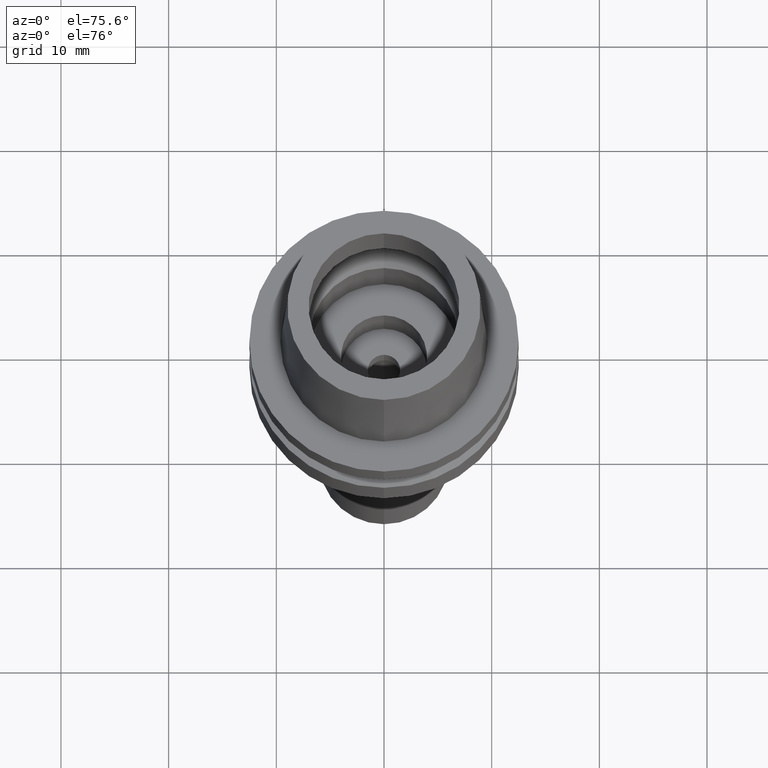
[diagram: clean part render]
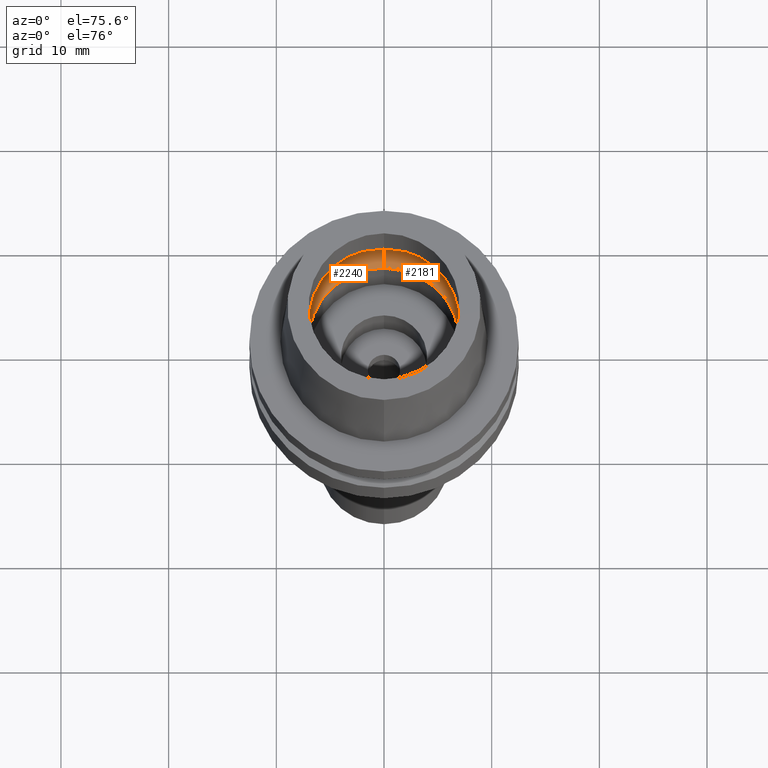
[diagram: same view with one multi-face feature highlighted, each face labeled with its STEP entity id]
A machine part, auxiliary view. The highlighted faces form ONE feature: a constant-radius fillet chain: 2 tangent blend faces with common blend radius 3 mm. The faces share edges in the B-rep.
Their STEP definitions:
[1] entity #2240 (Torus):
#22 = VERTEX_POINT ( 'NONE', #1768 ) ;
#58 = EDGE_CURVE ( 'NONE', #22, #1844, #2432, .T. ) ;
#126 = ORIENTED_EDGE ( 'NONE', *, *, #2163, .F. ) ;
#293 = AXIS2_PLACEMENT_3D ( 'NONE', #1394, #758, #2241 ) ;
#327 = ORIENTED_EDGE ( 'NONE', *, *, #971, .F. ) ;
#353 = CARTESIAN_POINT ( 'NONE',  ( 0.0000000000000000000, 5.200000000000000178, 2.449999999999999734 ) ) ;
#515 = DIRECTION ( 'NONE',  ( 1.000000000000000000, 0.0000000000000000000, 0.0000000000000000000 ) ) ;
#552 = DIRECTION ( 'NONE',  ( 0.0000000000000000000, 0.5999999999999998668, -0.8000000000000001554 ) ) ;
#574 = CARTESIAN_POINT ( 'NONE',  ( 0.0000000000000000000, -5.200000000000000178, 2.449999999999999734 ) ) ;
#637 = ORIENTED_EDGE ( 'NONE', *, *, #810, .T. ) ;
#657 = ORIENTED_EDGE ( 'NONE', *, *, #58, .F. ) ;
#758 = DIRECTION ( 'NONE',  ( 0.0000000000000000000, 0.0000000000000000000, 1.000000000000000000 ) ) ;
#809 = AXIS2_PLACEMENT_3D ( 'NONE', #941, #1774, #2600 ) ;
#810 = EDGE_CURVE ( 'NONE', #22, #1942, #1809, .T. ) ;
#815 = DIRECTION ( 'NONE',  ( -1.000000000000000000, 0.0000000000000000000, 0.0000000000000000000 ) ) ;
#941 = CARTESIAN_POINT ( 'NONE',  ( 0.0000000000000000000, 0.0000000000000000000, 2.449999999999999734 ) ) ;
#971 = EDGE_CURVE ( 'NONE', #1968, #1942, #1633, .T. ) ;
#981 = AXIS2_PLACEMENT_3D ( 'NONE', #353, #515, #552 ) ;
#1002 = EDGE_LOOP ( 'NONE', ( #327, #126, #657, #637 ) ) ;
#1091 = CARTESIAN_POINT ( 'NONE',  ( 0.0000000000000000000, -7.000000000000000000, 0.05000000000000000278 ) ) ;
#1142 = CARTESIAN_POINT ( 'NONE',  ( 0.0000000000000000000, 8.200000000000001066, 2.449999999999999734 ) ) ;
#1333 = TOROIDAL_SURFACE ( 'NONE', #293, 5.200000000000000178, 3.000000000000000000 ) ;
#1341 = CARTESIAN_POINT ( 'NONE',  ( 0.0000000000000000000, -8.200000000000001066, 2.449999999999999734 ) ) ;
#1394 = CARTESIAN_POINT ( 'NONE',  ( 0.0000000000000000000, 0.0000000000000000000, 2.449999999999999734 ) ) ;
#1593 = DIRECTION ( 'NONE',  ( 0.0000000000000000000, -0.5999999999999998668, -0.8000000000000001554 ) ) ;
#1633 = CIRCLE ( 'NONE', #809, 8.200000000000001066 ) ;
#1700 = AXIS2_PLACEMENT_3D ( 'NONE', #1807, #2583, #1975 ) ;
#1768 = CARTESIAN_POINT ( 'NONE',  ( 0.0000000000000000000, 7.000000000000000000, 0.04999999999999000383 ) ) ;
#1774 = DIRECTION ( 'NONE',  ( 0.0000000000000000000, 0.0000000000000000000, -1.000000000000000000 ) ) ;
#1776 = CIRCLE ( 'NONE', #2551, 3.000000000000000000 ) ;
#1807 = CARTESIAN_POINT ( 'NONE',  ( 0.0000000000000000000, 0.0000000000000000000, 0.05000000000000000278 ) ) ;
#1809 = CIRCLE ( 'NONE', #981, 3.000000000000000000 ) ;
#1844 = VERTEX_POINT ( 'NONE', #1091 ) ;
#1942 = VERTEX_POINT ( 'NONE', #1142 ) ;
#1968 = VERTEX_POINT ( 'NONE', #1341 ) ;
#1975 = DIRECTION ( 'NONE',  ( 0.0000000000000000000, 1.000000000000000000, 0.0000000000000000000 ) ) ;
#2163 = EDGE_CURVE ( 'NONE', #1844, #1968, #1776, .T. ) ;
#2240 = ADVANCED_FACE ( 'NONE', ( #2624 ), #1333, .F. ) ;
#2241 = DIRECTION ( 'NONE',  ( 0.0000000000000000000, 1.000000000000000000, 0.0000000000000000000 ) ) ;
#2432 = CIRCLE ( 'NONE', #1700, 7.000000000000000000 ) ;
#2551 = AXIS2_PLACEMENT_3D ( 'NONE', #574, #815, #1593 ) ;
#2583 = DIRECTION ( 'NONE',  ( 0.0000000000000000000, 0.0000000000000000000, 1.000000000000000000 ) ) ;
#2600 = DIRECTION ( 'NONE',  ( 0.0000000000000000000, -1.000000000000000000, 0.0000000000000000000 ) ) ;
#2624 = FACE_OUTER_BOUND ( 'NONE', #1002, .T. ) ;
[2] entity #2181 (Torus):
#22 = VERTEX_POINT ( 'NONE', #1768 ) ;
#23 = DIRECTION ( 'NONE',  ( 0.0000000000000000000, -1.000000000000000000, 0.0000000000000000000 ) ) ;
#164 = DIRECTION ( 'NONE',  ( 0.0000000000000000000, 0.0000000000000000000, -1.000000000000000000 ) ) ;
#353 = CARTESIAN_POINT ( 'NONE',  ( 0.0000000000000000000, 5.200000000000000178, 2.449999999999999734 ) ) ;
#380 = CARTESIAN_POINT ( 'NONE',  ( 0.0000000000000000000, 0.0000000000000000000, 2.449999999999999734 ) ) ;
#490 = CARTESIAN_POINT ( 'NONE',  ( 0.0000000000000000000, 0.0000000000000000000, 0.05000000000000000278 ) ) ;
#504 = TOROIDAL_SURFACE ( 'NONE', #1736, 5.200000000000000178, 3.000000000000000000 ) ;
#515 = DIRECTION ( 'NONE',  ( 1.000000000000000000, 0.0000000000000000000, 0.0000000000000000000 ) ) ;
#552 = DIRECTION ( 'NONE',  ( 0.0000000000000000000, 0.5999999999999998668, -0.8000000000000001554 ) ) ;
#574 = CARTESIAN_POINT ( 'NONE',  ( 0.0000000000000000000, -5.200000000000000178, 2.449999999999999734 ) ) ;
#707 = EDGE_CURVE ( 'NONE', #1844, #22, #1684, .T. ) ;
#810 = EDGE_CURVE ( 'NONE', #22, #1942, #1809, .T. ) ;
#815 = DIRECTION ( 'NONE',  ( -1.000000000000000000, 0.0000000000000000000, 0.0000000000000000000 ) ) ;
#864 = ORIENTED_EDGE ( 'NONE', *, *, #1052, .F. ) ;
#981 = AXIS2_PLACEMENT_3D ( 'NONE', #353, #515, #552 ) ;
#1052 = EDGE_CURVE ( 'NONE', #1942, #1968, #2588, .T. ) ;
#1091 = CARTESIAN_POINT ( 'NONE',  ( 0.0000000000000000000, -7.000000000000000000, 0.05000000000000000278 ) ) ;
#1122 = DIRECTION ( 'NONE',  ( 0.0000000000000000000, 0.0000000000000000000, 1.000000000000000000 ) ) ;
#1142 = CARTESIAN_POINT ( 'NONE',  ( 0.0000000000000000000, 8.200000000000001066, 2.449999999999999734 ) ) ;
#1209 = DIRECTION ( 'NONE',  ( 0.0000000000000000000, 0.0000000000000000000, 1.000000000000000000 ) ) ;
#1235 = FACE_OUTER_BOUND ( 'NONE', #2249, .T. ) ;
#1341 = CARTESIAN_POINT ( 'NONE',  ( 0.0000000000000000000, -8.200000000000001066, 2.449999999999999734 ) ) ;
#1415 = AXIS2_PLACEMENT_3D ( 'NONE', #380, #164, #2058 ) ;
#1543 = AXIS2_PLACEMENT_3D ( 'NONE', #490, #1122, #23 ) ;
#1593 = DIRECTION ( 'NONE',  ( 0.0000000000000000000, -0.5999999999999998668, -0.8000000000000001554 ) ) ;
#1684 = CIRCLE ( 'NONE', #1543, 7.000000000000000000 ) ;
#1736 = AXIS2_PLACEMENT_3D ( 'NONE', #1811, #1209, #1829 ) ;
#1768 = CARTESIAN_POINT ( 'NONE',  ( 0.0000000000000000000, 7.000000000000000000, 0.04999999999999000383 ) ) ;
#1776 = CIRCLE ( 'NONE', #2551, 3.000000000000000000 ) ;
#1809 = CIRCLE ( 'NONE', #981, 3.000000000000000000 ) ;
#1811 = CARTESIAN_POINT ( 'NONE',  ( 0.0000000000000000000, 0.0000000000000000000, 2.449999999999999734 ) ) ;
#1829 = DIRECTION ( 'NONE',  ( 0.0000000000000000000, 1.000000000000000000, 0.0000000000000000000 ) ) ;
#1844 = VERTEX_POINT ( 'NONE', #1091 ) ;
#1942 = VERTEX_POINT ( 'NONE', #1142 ) ;
#1968 = VERTEX_POINT ( 'NONE', #1341 ) ;
#2058 = DIRECTION ( 'NONE',  ( 0.0000000000000000000, 1.000000000000000000, 0.0000000000000000000 ) ) ;
#2142 = ORIENTED_EDGE ( 'NONE', *, *, #707, .F. ) ;
#2163 = EDGE_CURVE ( 'NONE', #1844, #1968, #1776, .T. ) ;
#2181 = ADVANCED_FACE ( 'NONE', ( #1235 ), #504, .F. ) ;
#2249 = EDGE_LOOP ( 'NONE', ( #2142, #2526, #864, #2270 ) ) ;
#2270 = ORIENTED_EDGE ( 'NONE', *, *, #810, .F. ) ;
#2526 = ORIENTED_EDGE ( 'NONE', *, *, #2163, .T. ) ;
#2551 = AXIS2_PLACEMENT_3D ( 'NONE', #574, #815, #1593 ) ;
#2588 = CIRCLE ( 'NONE', #1415, 8.200000000000001066 ) ;